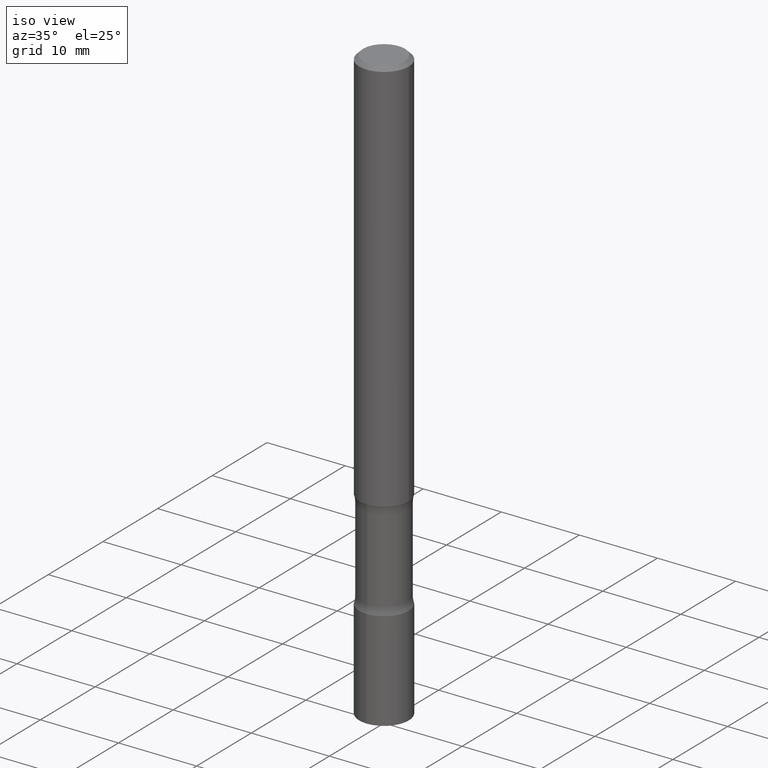
[diagram: clean part render]
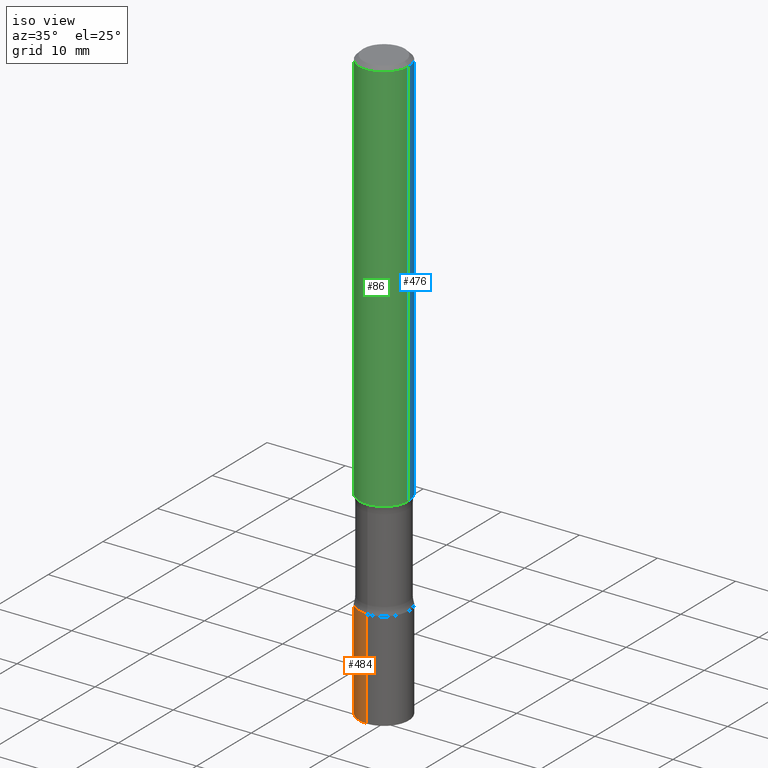
[diagram: same view with three faces highlighted in distinct colors, each labeled with its STEP entity id]
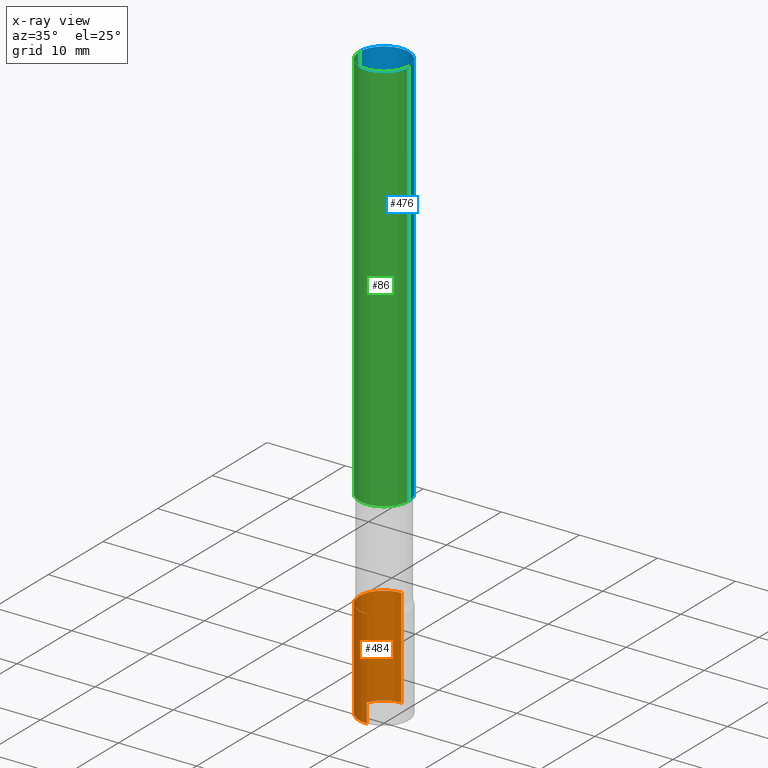
[diagram: x-ray of the same camera — body ghosted, the three highlighted faces saturated]
A machine part, iso view with three faces highlighted in distinct colors.
The next image is the same camera in x-ray (body ghosted, the three faces saturated) — at least one of them is partly hidden behind the body in this view.
Their STEP definitions:

[orange] entity #484 — the highlighted cylindrical surface (edge-blend (fillet) strip) has radius 3.175 mm, axis along (-0, 0, 1).
#19 = VECTOR ( 'NONE', #399, 39.37007874015748143 ) ;
#29 = CARTESIAN_POINT ( 'NONE',  ( 6.114631195300628231E-29, -8.727329746987029987E-15, -2.500000000000000000 ) ) ;
#47 = DIRECTION ( 'NONE',  ( -6.982962677686265922E-15, -1.000000000000000000, 3.490931898794811600E-15 ) ) ;
#48 = LINE ( 'NONE', #398, #19 ) ;
#55 = CYLINDRICAL_SURFACE ( 'NONE', #95, 0.1249999999999999584 ) ;
#58 = CIRCLE ( 'NONE', #481, 0.1249999999999999584 ) ;
#73 = ORIENTED_EDGE ( 'NONE', *, *, #325, .T. ) ;
#95 = AXIS2_PLACEMENT_3D ( 'NONE', #334, #132, #47 ) ;
#96 = EDGE_CURVE ( 'NONE', #445, #118, #457, .T. ) ;
#108 = CARTESIAN_POINT ( 'NONE',  ( 8.881784197001248379E-16, 0.1249999999999999584, -4.363664873493513021E-16 ) ) ;
#118 = VERTEX_POINT ( 'NONE', #184 ) ;
#132 = DIRECTION ( 'NONE',  ( -2.445852478120250956E-29, 3.490931898794811600E-15, 1.000000000000000000 ) ) ;
#133 = EDGE_CURVE ( 'NONE', #118, #179, #185, .T. ) ;
#166 = EDGE_LOOP ( 'NONE', ( #409, #73, #370, #285 ) ) ;
#176 = FACE_OUTER_BOUND ( 'NONE', #166, .T. ) ;
#179 = VERTEX_POINT ( 'NONE', #267 ) ;
#184 = CARTESIAN_POINT ( 'NONE',  ( 8.881784197001982020E-16, 0.1249999999999912292, -2.500000000000000444 ) ) ;
#185 = CIRCLE ( 'NONE', #251, 0.1249999999999999584 ) ;
#206 = CARTESIAN_POINT ( 'NONE',  ( 8.881784197001922855E-16, 0.1249999999999894945, -3.000000000000000888 ) ) ;
#251 = AXIS2_PLACEMENT_3D ( 'NONE', #29, #415, #386 ) ;
#261 = EDGE_CURVE ( 'NONE', #333, #179, #48, .T. ) ;
#267 = CARTESIAN_POINT ( 'NONE',  ( -8.728703347107218077E-16, -0.1250000000000086875, -2.499999999999999556 ) ) ;
#285 = ORIENTED_EDGE ( 'NONE', *, *, #133, .F. ) ;
#320 = CARTESIAN_POINT ( 'NONE',  ( -8.728703347107095803E-16, -0.1250000000000104361, -2.999999999999999556 ) ) ;
#325 = EDGE_CURVE ( 'NONE', #445, #333, #58, .T. ) ;
#326 = DIRECTION ( 'NONE',  ( -2.445852478120250956E-29, 3.490931898794811600E-15, 1.000000000000000000 ) ) ;
#329 = DIRECTION ( 'NONE',  ( -6.982962677686265922E-15, -1.000000000000000000, 4.370956789862822727E-15 ) ) ;
#333 = VERTEX_POINT ( 'NONE', #320 ) ;
#334 = CARTESIAN_POINT ( 'NONE',  ( 0.000000000000000000, 0.000000000000000000, 0.000000000000000000 ) ) ;
#368 = VECTOR ( 'NONE', #501, 39.37007874015748143 ) ;
#370 = ORIENTED_EDGE ( 'NONE', *, *, #261, .T. ) ;
#386 = DIRECTION ( 'NONE',  ( -6.982962677686265922E-15, -1.000000000000000000, 4.370956789862822727E-15 ) ) ;
#398 = CARTESIAN_POINT ( 'NONE',  ( -8.728703347107829444E-16, -0.1249999999999999584, 4.363664873493513021E-16 ) ) ;
#399 = DIRECTION ( 'NONE',  ( -2.445852478120250956E-29, 3.490931898794811995E-15, 1.000000000000000000 ) ) ;
#408 = CARTESIAN_POINT ( 'NONE',  ( 7.337557434360752308E-29, -1.047279569638443441E-14, -3.000000000000000444 ) ) ;
#409 = ORIENTED_EDGE ( 'NONE', *, *, #96, .F. ) ;
#415 = DIRECTION ( 'NONE',  ( -2.445852478120250956E-29, 3.490931898794811600E-15, 1.000000000000000000 ) ) ;
#445 = VERTEX_POINT ( 'NONE', #206 ) ;
#457 = LINE ( 'NONE', #108, #368 ) ;
#481 = AXIS2_PLACEMENT_3D ( 'NONE', #408, #326, #329 ) ;
#484 = ADVANCED_FACE ( 'NONE', ( #176 ), #55, .T. ) ;
#501 = DIRECTION ( 'NONE',  ( -2.445852478120250956E-29, 3.490931898794811995E-15, 1.000000000000000000 ) ) ;

[blue] entity #476 — the highlighted cylindrical surface (edge-blend (fillet) strip) has radius 3.175 mm, axis along (-0, 0, 1).
#28 = VECTOR ( 'NONE', #337, 39.37007874015748143 ) ;
#32 = VERTEX_POINT ( 'NONE', #378 ) ;
#45 = ORIENTED_EDGE ( 'NONE', *, *, #507, .T. ) ;
#70 = CARTESIAN_POINT ( 'NONE',  ( 0.1249999999999997641, -9.273918764983027713E-16, -0.02000000000000000042 ) ) ;
#83 = CIRCLE ( 'NONE', #376, 0.1249999999999997641 ) ;
#98 = VERTEX_POINT ( 'NONE', #70 ) ;
#100 = CARTESIAN_POINT ( 'NONE',  ( 4.890937612370274875E-29, -6.982962677686292743E-15, -2.000000000000000444 ) ) ;
#129 = ORIENTED_EDGE ( 'NONE', *, *, #307, .F. ) ;
#147 = VECTOR ( 'NONE', #157, 39.37007874015748143 ) ;
#157 = DIRECTION ( 'NONE',  ( -2.445468806185136877E-29, 3.491481338843145188E-15, 1.000000000000000000 ) ) ;
#214 = CARTESIAN_POINT ( 'NONE',  ( -0.1249999999999997641, 8.030407079339186601E-16, -0.02000000000000000042 ) ) ;
#215 = FACE_OUTER_BOUND ( 'NONE', #231, .T. ) ;
#231 = EDGE_LOOP ( 'NONE', ( #45, #352, #129, #317 ) ) ;
#238 = DIRECTION ( 'NONE',  ( 1.000000000000000000, -6.982962677686266711E-15, 0.000000000000000000 ) ) ;
#249 = DIRECTION ( 'NONE',  ( 1.000000000000000000, -6.982962677686270655E-15, 0.000000000000000000 ) ) ;
#257 = DIRECTION ( 'NONE',  ( 1.000000000000000000, -6.982962677686267499E-15, 4.876176775795935793E-29 ) ) ;
#274 = AXIS2_PLACEMENT_3D ( 'NONE', #100, #369, #249 ) ;
#282 = CARTESIAN_POINT ( 'NONE',  ( 4.890937612370273159E-31, -6.982962677686291609E-17, -0.02000000000000000042 ) ) ;
#291 = LINE ( 'NONE', #447, #147 ) ;
#299 = VERTEX_POINT ( 'NONE', #404 ) ;
#307 = EDGE_CURVE ( 'NONE', #98, #508, #83, .T. ) ;
#317 = ORIENTED_EDGE ( 'NONE', *, *, #364, .F. ) ;
#331 = CARTESIAN_POINT ( 'NONE',  ( 0.000000000000000000, 0.000000000000000000, 0.000000000000000000 ) ) ;
#337 = DIRECTION ( 'NONE',  ( -2.445468806185136877E-29, 3.491481338843145188E-15, 1.000000000000000000 ) ) ;
#339 = AXIS2_PLACEMENT_3D ( 'NONE', #331, #446, #257 ) ;
#352 = ORIENTED_EDGE ( 'NONE', *, *, #451, .T. ) ;
#364 = EDGE_CURVE ( 'NONE', #32, #98, #291, .T. ) ;
#369 = DIRECTION ( 'NONE',  ( -2.445468806185136597E-29, 3.491481338843145583E-15, 1.000000000000000000 ) ) ;
#376 = AXIS2_PLACEMENT_3D ( 'NONE', #282, #438, #238 ) ;
#377 = LINE ( 'NONE', #449, #28 ) ;
#378 = CARTESIAN_POINT ( 'NONE',  ( 0.1250000000000000000, -7.855833012397076871E-15, -2.000000000000000444 ) ) ;
#404 = CARTESIAN_POINT ( 'NONE',  ( -0.1250000000000000000, -2.638217732531449633E-15, -2.000000000000000444 ) ) ;
#412 = CYLINDRICAL_SURFACE ( 'NONE', #339, 0.1249999999999998751 ) ;
#438 = DIRECTION ( 'NONE',  ( -2.445468806185136597E-29, 3.491481338843145583E-15, 1.000000000000000000 ) ) ;
#446 = DIRECTION ( 'NONE',  ( -2.445468806185136597E-29, 3.491481338843145583E-15, 1.000000000000000000 ) ) ;
#447 = CARTESIAN_POINT ( 'NONE',  ( 0.1249999999999998751, -8.728703347107825500E-16, 6.095220969744913435E-30 ) ) ;
#449 = CARTESIAN_POINT ( 'NONE',  ( -0.1249999999999998751, 8.881784197001243449E-16, -6.148668862818626622E-30 ) ) ;
#451 = EDGE_CURVE ( 'NONE', #299, #508, #377, .T. ) ;
#473 = CIRCLE ( 'NONE', #274, 0.1250000000000000000 ) ;
#476 = ADVANCED_FACE ( 'NONE', ( #215 ), #412, .T. ) ;
#507 = EDGE_CURVE ( 'NONE', #32, #299, #473, .T. ) ;
#508 = VERTEX_POINT ( 'NONE', #214 ) ;

[green] entity #86 — the highlighted cylindrical surface (edge-blend (fillet) strip) has radius 3.175 mm, axis along (-0, 0, 1).
#17 = EDGE_LOOP ( 'NONE', ( #292, #365, #81, #34 ) ) ;
#28 = VECTOR ( 'NONE', #337, 39.37007874015748143 ) ;
#32 = VERTEX_POINT ( 'NONE', #378 ) ;
#34 = ORIENTED_EDGE ( 'NONE', *, *, #456, .F. ) ;
#70 = CARTESIAN_POINT ( 'NONE',  ( 0.1249999999999997641, -9.273918764983027713E-16, -0.02000000000000000042 ) ) ;
#81 = ORIENTED_EDGE ( 'NONE', *, *, #364, .T. ) ;
#86 = ADVANCED_FACE ( 'NONE', ( #503 ), #354, .T. ) ;
#88 = CARTESIAN_POINT ( 'NONE',  ( 4.890937612370273159E-31, -6.982962677686291609E-17, -0.02000000000000000042 ) ) ;
#98 = VERTEX_POINT ( 'NONE', #70 ) ;
#107 = DIRECTION ( 'NONE',  ( -2.445468806185136597E-29, 3.491481338843145583E-15, 1.000000000000000000 ) ) ;
#146 = AXIS2_PLACEMENT_3D ( 'NONE', #465, #273, #429 ) ;
#147 = VECTOR ( 'NONE', #157, 39.37007874015748143 ) ;
#157 = DIRECTION ( 'NONE',  ( -2.445468806185136877E-29, 3.491481338843145188E-15, 1.000000000000000000 ) ) ;
#169 = AXIS2_PLACEMENT_3D ( 'NONE', #463, #107, #195 ) ;
#178 = AXIS2_PLACEMENT_3D ( 'NONE', #88, #407, #366 ) ;
#190 = EDGE_CURVE ( 'NONE', #299, #32, #239, .T. ) ;
#195 = DIRECTION ( 'NONE',  ( 1.000000000000000000, -6.982962677686267499E-15, 4.876176775795935793E-29 ) ) ;
#214 = CARTESIAN_POINT ( 'NONE',  ( -0.1249999999999997641, 8.030407079339186601E-16, -0.02000000000000000042 ) ) ;
#239 = CIRCLE ( 'NONE', #146, 0.1250000000000000000 ) ;
#273 = DIRECTION ( 'NONE',  ( -2.445468806185136597E-29, 3.491481338843145583E-15, 1.000000000000000000 ) ) ;
#291 = LINE ( 'NONE', #447, #147 ) ;
#292 = ORIENTED_EDGE ( 'NONE', *, *, #451, .F. ) ;
#299 = VERTEX_POINT ( 'NONE', #404 ) ;
#337 = DIRECTION ( 'NONE',  ( -2.445468806185136877E-29, 3.491481338843145188E-15, 1.000000000000000000 ) ) ;
#354 = CYLINDRICAL_SURFACE ( 'NONE', #169, 0.1249999999999998751 ) ;
#364 = EDGE_CURVE ( 'NONE', #32, #98, #291, .T. ) ;
#365 = ORIENTED_EDGE ( 'NONE', *, *, #190, .T. ) ;
#366 = DIRECTION ( 'NONE',  ( 1.000000000000000000, -6.982962677686266711E-15, 0.000000000000000000 ) ) ;
#377 = LINE ( 'NONE', #449, #28 ) ;
#378 = CARTESIAN_POINT ( 'NONE',  ( 0.1250000000000000000, -7.855833012397076871E-15, -2.000000000000000444 ) ) ;
#404 = CARTESIAN_POINT ( 'NONE',  ( -0.1250000000000000000, -2.638217732531449633E-15, -2.000000000000000444 ) ) ;
#407 = DIRECTION ( 'NONE',  ( -2.445468806185136597E-29, 3.491481338843145583E-15, 1.000000000000000000 ) ) ;
#427 = CIRCLE ( 'NONE', #178, 0.1249999999999997641 ) ;
#429 = DIRECTION ( 'NONE',  ( 1.000000000000000000, -6.982962677686270655E-15, 0.000000000000000000 ) ) ;
#447 = CARTESIAN_POINT ( 'NONE',  ( 0.1249999999999998751, -8.728703347107825500E-16, 6.095220969744913435E-30 ) ) ;
#449 = CARTESIAN_POINT ( 'NONE',  ( -0.1249999999999998751, 8.881784197001243449E-16, -6.148668862818626622E-30 ) ) ;
#451 = EDGE_CURVE ( 'NONE', #299, #508, #377, .T. ) ;
#456 = EDGE_CURVE ( 'NONE', #508, #98, #427, .T. ) ;
#463 = CARTESIAN_POINT ( 'NONE',  ( 0.000000000000000000, 0.000000000000000000, 0.000000000000000000 ) ) ;
#465 = CARTESIAN_POINT ( 'NONE',  ( 4.890937612370274875E-29, -6.982962677686292743E-15, -2.000000000000000444 ) ) ;
#503 = FACE_OUTER_BOUND ( 'NONE', #17, .T. ) ;
#508 = VERTEX_POINT ( 'NONE', #214 ) ;